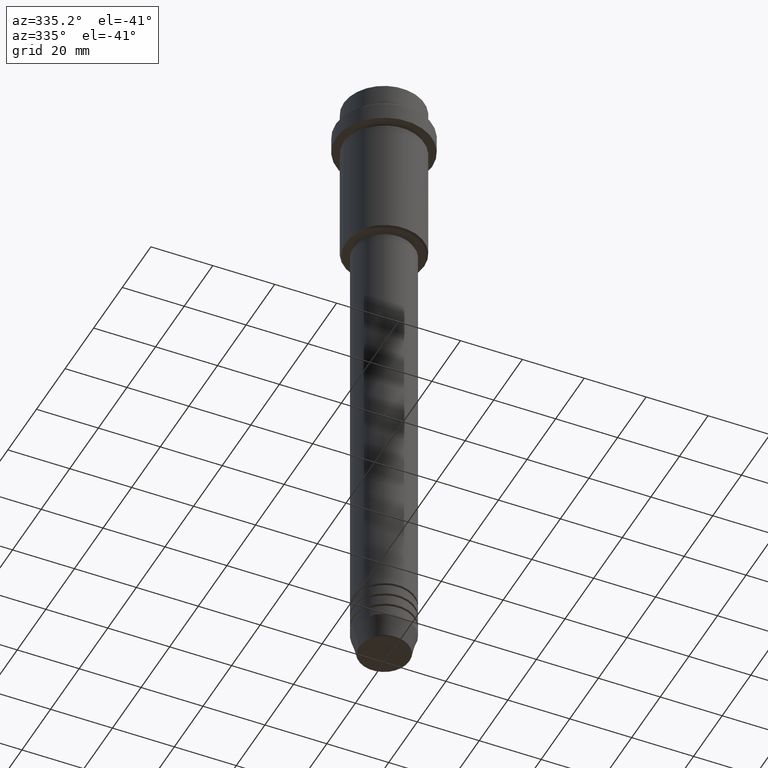
[diagram: clean part render]
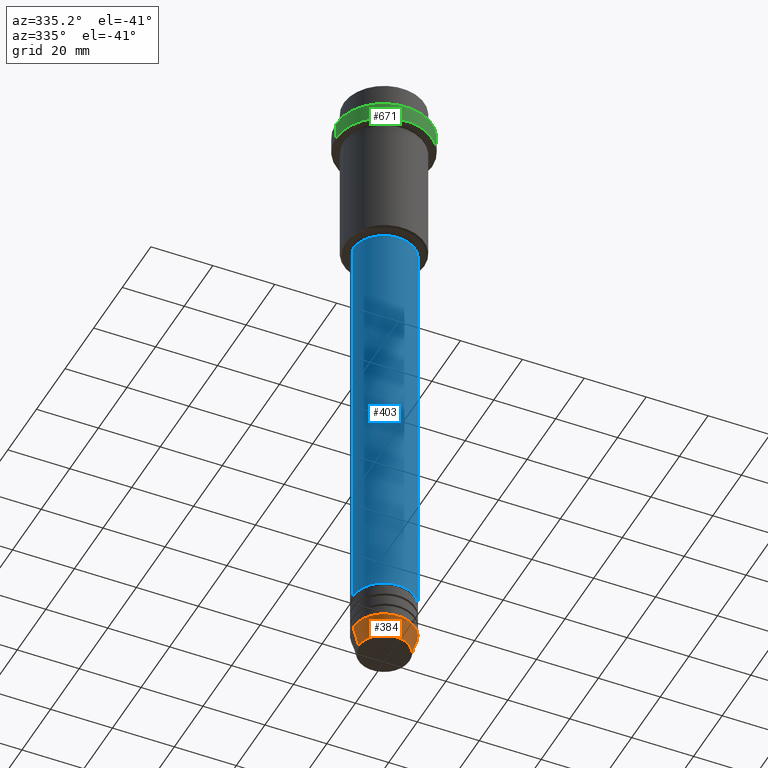
[diagram: same view with three faces highlighted in distinct colors, each labeled with its STEP entity id]
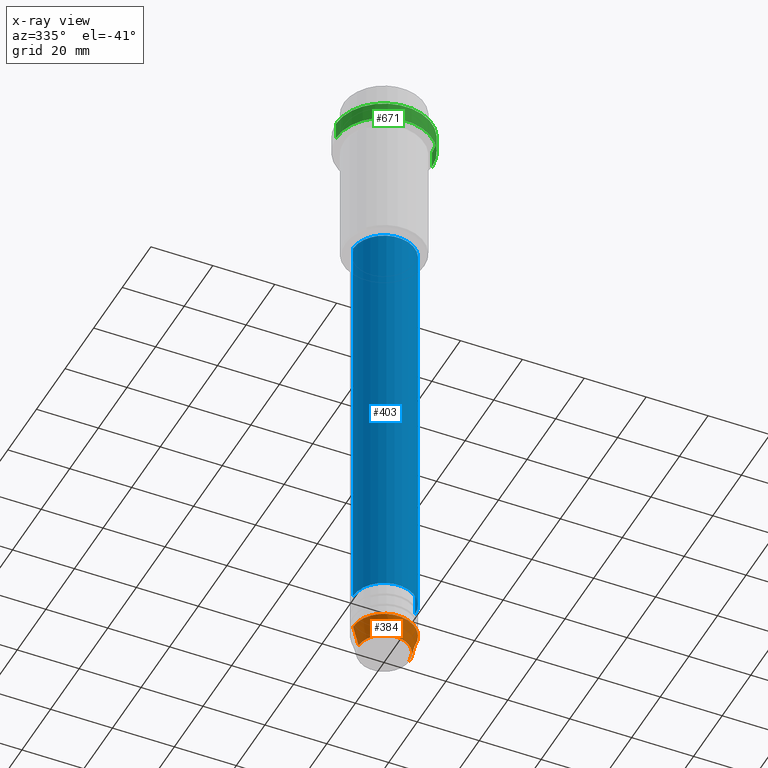
[diagram: x-ray of the same camera — body ghosted, the three highlighted faces saturated]
A machine part, auxiliary view with three faces highlighted in distinct colors.
The next image is the same camera in x-ray (body ghosted, the three faces saturated) — at least one of them is partly hidden behind the body in this view.
Their STEP definitions:

[orange] entity #384 — the highlighted conical surface has half-angle 15 deg.
#10 = CIRCLE ( 'NONE', #805, 10.00000000000000000 ) ;
#53 = EDGE_CURVE ( 'NONE', #1036, #61, #10, .T. ) ;
#61 = VERTEX_POINT ( 'NONE', #1297 ) ;
#98 = DIRECTION ( 'NONE',  ( 1.000000000000000000, 0.000000000000000000, 0.000000000000000000 ) ) ;
#123 = AXIS2_PLACEMENT_3D ( 'NONE', #544, #1280, #1417 ) ;
#134 = LINE ( 'NONE', #1222, #723 ) ;
#194 = DIRECTION ( 'NONE',  ( -0.000000000000000000, -0.000000000000000000, 1.000000000000000000 ) ) ;
#200 = ORIENTED_EDGE ( 'NONE', *, *, #53, .F. ) ;
#384 = ADVANCED_FACE ( 'NONE', ( #984 ), #605, .T. ) ;
#454 = EDGE_CURVE ( 'NONE', #771, #1036, #524, .T. ) ;
#502 = ORIENTED_EDGE ( 'NONE', *, *, #896, .T. ) ;
#524 = LINE ( 'NONE', #728, #558 ) ;
#544 = CARTESIAN_POINT ( 'NONE',  ( 0.000000000000000000, 0.000000000000000000, -203.0000000000000000 ) ) ;
#558 = VECTOR ( 'NONE', #1373, 1000.000000000000000 ) ;
#569 = DIRECTION ( 'NONE',  ( 0.2588190451025213501, 0.000000000000000000, 0.9659258262890680902 ) ) ;
#605 = CONICAL_SURFACE ( 'NONE', #123, 10.00000000000000000, 0.2617993877991500740 ) ;
#642 = DIRECTION ( 'NONE',  ( -0.000000000000000000, -0.000000000000000000, 1.000000000000000000 ) ) ;
#679 = AXIS2_PLACEMENT_3D ( 'NONE', #739, #642, #98 ) ;
#715 = ORIENTED_EDGE ( 'NONE', *, *, #769, .T. ) ;
#723 = VECTOR ( 'NONE', #569, 1000.000000000000000 ) ;
#728 = CARTESIAN_POINT ( 'NONE',  ( -10.00000000000000000, 1.224646799147353256E-15, -203.0000000000000000 ) ) ;
#739 = CARTESIAN_POINT ( 'NONE',  ( 0.000000000000000000, 0.000000000000000000, -209.6294095225512706 ) ) ;
#769 = EDGE_CURVE ( 'NONE', #771, #1376, #1236, .T. ) ;
#771 = VERTEX_POINT ( 'NONE', #973 ) ;
#805 = AXIS2_PLACEMENT_3D ( 'NONE', #1177, #194, #967 ) ;
#854 = ORIENTED_EDGE ( 'NONE', *, *, #454, .F. ) ;
#896 = EDGE_CURVE ( 'NONE', #1376, #61, #134, .T. ) ;
#967 = DIRECTION ( 'NONE',  ( 1.000000000000000000, 0.000000000000000000, 0.000000000000000000 ) ) ;
#973 = CARTESIAN_POINT ( 'NONE',  ( -8.223655072137191269, 1.115877042642912054E-15, -209.6294095225512706 ) ) ;
#984 = FACE_OUTER_BOUND ( 'NONE', #1339, .T. ) ;
#1036 = VERTEX_POINT ( 'NONE', #1131 ) ;
#1131 = CARTESIAN_POINT ( 'NONE',  ( -10.00000000000000000, 1.224646799147353256E-15, -203.0000000000000000 ) ) ;
#1177 = CARTESIAN_POINT ( 'NONE',  ( 0.000000000000000000, 0.000000000000000000, -203.0000000000000000 ) ) ;
#1222 = CARTESIAN_POINT ( 'NONE',  ( 10.00000000000000000, 0.000000000000000000, -203.0000000000000000 ) ) ;
#1236 = CIRCLE ( 'NONE', #679, 8.223655072137191269 ) ;
#1280 = DIRECTION ( 'NONE',  ( -0.000000000000000000, -0.000000000000000000, 1.000000000000000000 ) ) ;
#1297 = CARTESIAN_POINT ( 'NONE',  ( 10.00000000000000000, 0.000000000000000000, -203.0000000000000000 ) ) ;
#1334 = CARTESIAN_POINT ( 'NONE',  ( 8.223655072137191269, 0.000000000000000000, -209.6294095225512706 ) ) ;
#1339 = EDGE_LOOP ( 'NONE', ( #854, #715, #502, #200 ) ) ;
#1373 = DIRECTION ( 'NONE',  ( -0.2588190451025213501, 3.169619151431772337E-17, 0.9659258262890680902 ) ) ;
#1376 = VERTEX_POINT ( 'NONE', #1334 ) ;
#1417 = DIRECTION ( 'NONE',  ( 1.000000000000000000, 0.000000000000000000, 0.000000000000000000 ) ) ;

[blue] entity #403 — the highlighted cylindrical surface (edge-blend (fillet) strip) has radius 10 mm, axis along (-0, -0, 1).
#100 = CARTESIAN_POINT ( 'NONE',  ( -10.00000000000000000, 1.224646799147353256E-15, -190.9999999999999147 ) ) ;
#155 = DIRECTION ( 'NONE',  ( -0.000000000000000000, -0.000000000000000000, 1.000000000000000000 ) ) ;
#183 = ORIENTED_EDGE ( 'NONE', *, *, #565, .F. ) ;
#196 = CYLINDRICAL_SURFACE ( 'NONE', #1330, 10.00000000000000178 ) ;
#223 = DIRECTION ( 'NONE',  ( -0.000000000000000000, -0.000000000000000000, 1.000000000000000000 ) ) ;
#241 = CIRCLE ( 'NONE', #442, 10.00000000000000000 ) ;
#249 = ORIENTED_EDGE ( 'NONE', *, *, #1322, .T. ) ;
#251 = DIRECTION ( 'NONE',  ( 1.000000000000000000, 0.000000000000000000, 0.000000000000000000 ) ) ;
#271 = ORIENTED_EDGE ( 'NONE', *, *, #988, .F. ) ;
#273 = DIRECTION ( 'NONE',  ( -0.000000000000000000, -0.000000000000000000, 1.000000000000000000 ) ) ;
#341 = DIRECTION ( 'NONE',  ( -0.000000000000000000, -0.000000000000000000, 1.000000000000000000 ) ) ;
#373 = VERTEX_POINT ( 'NONE', #1008 ) ;
#403 = ADVANCED_FACE ( 'NONE', ( #745 ), #196, .T. ) ;
#442 = AXIS2_PLACEMENT_3D ( 'NONE', #897, #341, #455 ) ;
#455 = DIRECTION ( 'NONE',  ( 1.000000000000000000, 0.000000000000000000, 0.000000000000000000 ) ) ;
#467 = VECTOR ( 'NONE', #223, 1000.000000000000000 ) ;
#472 = VERTEX_POINT ( 'NONE', #100 ) ;
#565 = EDGE_CURVE ( 'NONE', #472, #1026, #919, .T. ) ;
#645 = DIRECTION ( 'NONE',  ( -0.000000000000000000, -0.000000000000000000, 1.000000000000000000 ) ) ;
#660 = CIRCLE ( 'NONE', #1409, 10.00000000000000178 ) ;
#668 = LINE ( 'NONE', #872, #467 ) ;
#692 = CARTESIAN_POINT ( 'NONE',  ( 0.000000000000000000, 0.000000000000000000, -56.00000000000002842 ) ) ;
#699 = CARTESIAN_POINT ( 'NONE',  ( -10.00000000000000178, 1.224646799147353454E-15, -56.00000000000002842 ) ) ;
#718 = CARTESIAN_POINT ( 'NONE',  ( 10.00000000000000000, 0.000000000000000000, -190.9999999999999147 ) ) ;
#734 = EDGE_LOOP ( 'NONE', ( #183, #814, #249, #271 ) ) ;
#745 = FACE_OUTER_BOUND ( 'NONE', #734, .T. ) ;
#814 = ORIENTED_EDGE ( 'NONE', *, *, #1250, .T. ) ;
#872 = CARTESIAN_POINT ( 'NONE',  ( 10.00000000000000178, 0.000000000000000000, 0.000000000000000000 ) ) ;
#897 = CARTESIAN_POINT ( 'NONE',  ( 0.000000000000000000, 0.000000000000000000, -190.9999999999999147 ) ) ;
#916 = VERTEX_POINT ( 'NONE', #718 ) ;
#919 = LINE ( 'NONE', #1347, #1019 ) ;
#921 = DIRECTION ( 'NONE',  ( 1.000000000000000000, 0.000000000000000000, 0.000000000000000000 ) ) ;
#969 = CARTESIAN_POINT ( 'NONE',  ( 0.000000000000000000, 0.000000000000000000, 0.000000000000000000 ) ) ;
#988 = EDGE_CURVE ( 'NONE', #1026, #373, #660, .T. ) ;
#1008 = CARTESIAN_POINT ( 'NONE',  ( 10.00000000000000178, 0.000000000000000000, -56.00000000000002842 ) ) ;
#1019 = VECTOR ( 'NONE', #155, 1000.000000000000000 ) ;
#1026 = VERTEX_POINT ( 'NONE', #699 ) ;
#1250 = EDGE_CURVE ( 'NONE', #472, #916, #241, .T. ) ;
#1322 = EDGE_CURVE ( 'NONE', #916, #373, #668, .T. ) ;
#1330 = AXIS2_PLACEMENT_3D ( 'NONE', #969, #645, #921 ) ;
#1347 = CARTESIAN_POINT ( 'NONE',  ( -10.00000000000000178, 1.224646799147353454E-15, 0.000000000000000000 ) ) ;
#1409 = AXIS2_PLACEMENT_3D ( 'NONE', #692, #273, #251 ) ;

[green] entity #671 — the highlighted cylindrical surface (partial cylindrical patch) has radius 15.5 mm, axis along (-0, -0, 1).
#35 = AXIS2_PLACEMENT_3D ( 'NONE', #197, #1171, #833 ) ;
#116 = ORIENTED_EDGE ( 'NONE', *, *, #1155, .T. ) ;
#148 = CIRCLE ( 'NONE', #35, 15.50000000000000000 ) ;
#159 = ORIENTED_EDGE ( 'NONE', *, *, #229, .T. ) ;
#179 = DIRECTION ( 'NONE',  ( -0.000000000000000000, -0.000000000000000000, 1.000000000000000000 ) ) ;
#197 = CARTESIAN_POINT ( 'NONE',  ( 0.000000000000000000, 0.000000000000000000, -15.00000000000000178 ) ) ;
#213 = CARTESIAN_POINT ( 'NONE',  ( 15.50000000000000000, 0.000000000000000000, -15.00000000000000178 ) ) ;
#229 = EDGE_CURVE ( 'NONE', #937, #992, #484, .T. ) ;
#290 = VECTOR ( 'NONE', #353, 1000.000000000000000 ) ;
#353 = DIRECTION ( 'NONE',  ( -0.000000000000000000, -0.000000000000000000, 1.000000000000000000 ) ) ;
#387 = EDGE_LOOP ( 'NONE', ( #827, #116, #1102, #159 ) ) ;
#482 = LINE ( 'NONE', #1123, #290 ) ;
#484 = CIRCLE ( 'NONE', #1377, 15.50000000000000000 ) ;
#485 = AXIS2_PLACEMENT_3D ( 'NONE', #1054, #1293, #964 ) ;
#514 = LINE ( 'NONE', #1370, #1298 ) ;
#542 = DIRECTION ( 'NONE',  ( 0.000000000000000000, 0.000000000000000000, -1.000000000000000000 ) ) ;
#615 = CARTESIAN_POINT ( 'NONE',  ( -15.50000000000000000, 1.898202538678397557E-15, -9.500000000000014211 ) ) ;
#622 = CYLINDRICAL_SURFACE ( 'NONE', #485, 15.50000000000000000 ) ;
#671 = ADVANCED_FACE ( 'NONE', ( #759 ), #622, .T. ) ;
#759 = FACE_OUTER_BOUND ( 'NONE', #387, .T. ) ;
#827 = ORIENTED_EDGE ( 'NONE', *, *, #960, .F. ) ;
#833 = DIRECTION ( 'NONE',  ( 1.000000000000000000, 0.000000000000000000, 0.000000000000000000 ) ) ;
#918 = VERTEX_POINT ( 'NONE', #1249 ) ;
#937 = VERTEX_POINT ( 'NONE', #1150 ) ;
#960 = EDGE_CURVE ( 'NONE', #918, #992, #482, .T. ) ;
#964 = DIRECTION ( 'NONE',  ( 1.000000000000000000, 0.000000000000000000, 0.000000000000000000 ) ) ;
#992 = VERTEX_POINT ( 'NONE', #615 ) ;
#1054 = CARTESIAN_POINT ( 'NONE',  ( 0.000000000000000000, 0.000000000000000000, 0.000000000000000000 ) ) ;
#1077 = DIRECTION ( 'NONE',  ( 1.000000000000000000, 0.000000000000000000, 0.000000000000000000 ) ) ;
#1094 = CARTESIAN_POINT ( 'NONE',  ( 0.000000000000000000, 0.000000000000000000, -9.500000000000014211 ) ) ;
#1102 = ORIENTED_EDGE ( 'NONE', *, *, #1200, .T. ) ;
#1123 = CARTESIAN_POINT ( 'NONE',  ( -15.50000000000000000, 1.898202538678397557E-15, 0.000000000000000000 ) ) ;
#1150 = CARTESIAN_POINT ( 'NONE',  ( 15.50000000000000000, 0.000000000000000000, -9.500000000000014211 ) ) ;
#1155 = EDGE_CURVE ( 'NONE', #918, #1217, #148, .T. ) ;
#1171 = DIRECTION ( 'NONE',  ( -0.000000000000000000, -0.000000000000000000, 1.000000000000000000 ) ) ;
#1200 = EDGE_CURVE ( 'NONE', #1217, #937, #514, .T. ) ;
#1217 = VERTEX_POINT ( 'NONE', #213 ) ;
#1249 = CARTESIAN_POINT ( 'NONE',  ( -15.50000000000000000, 1.898202538678397557E-15, -15.00000000000000178 ) ) ;
#1293 = DIRECTION ( 'NONE',  ( -0.000000000000000000, -0.000000000000000000, 1.000000000000000000 ) ) ;
#1298 = VECTOR ( 'NONE', #179, 1000.000000000000000 ) ;
#1370 = CARTESIAN_POINT ( 'NONE',  ( 15.50000000000000000, 0.000000000000000000, 0.000000000000000000 ) ) ;
#1377 = AXIS2_PLACEMENT_3D ( 'NONE', #1094, #542, #1077 ) ;